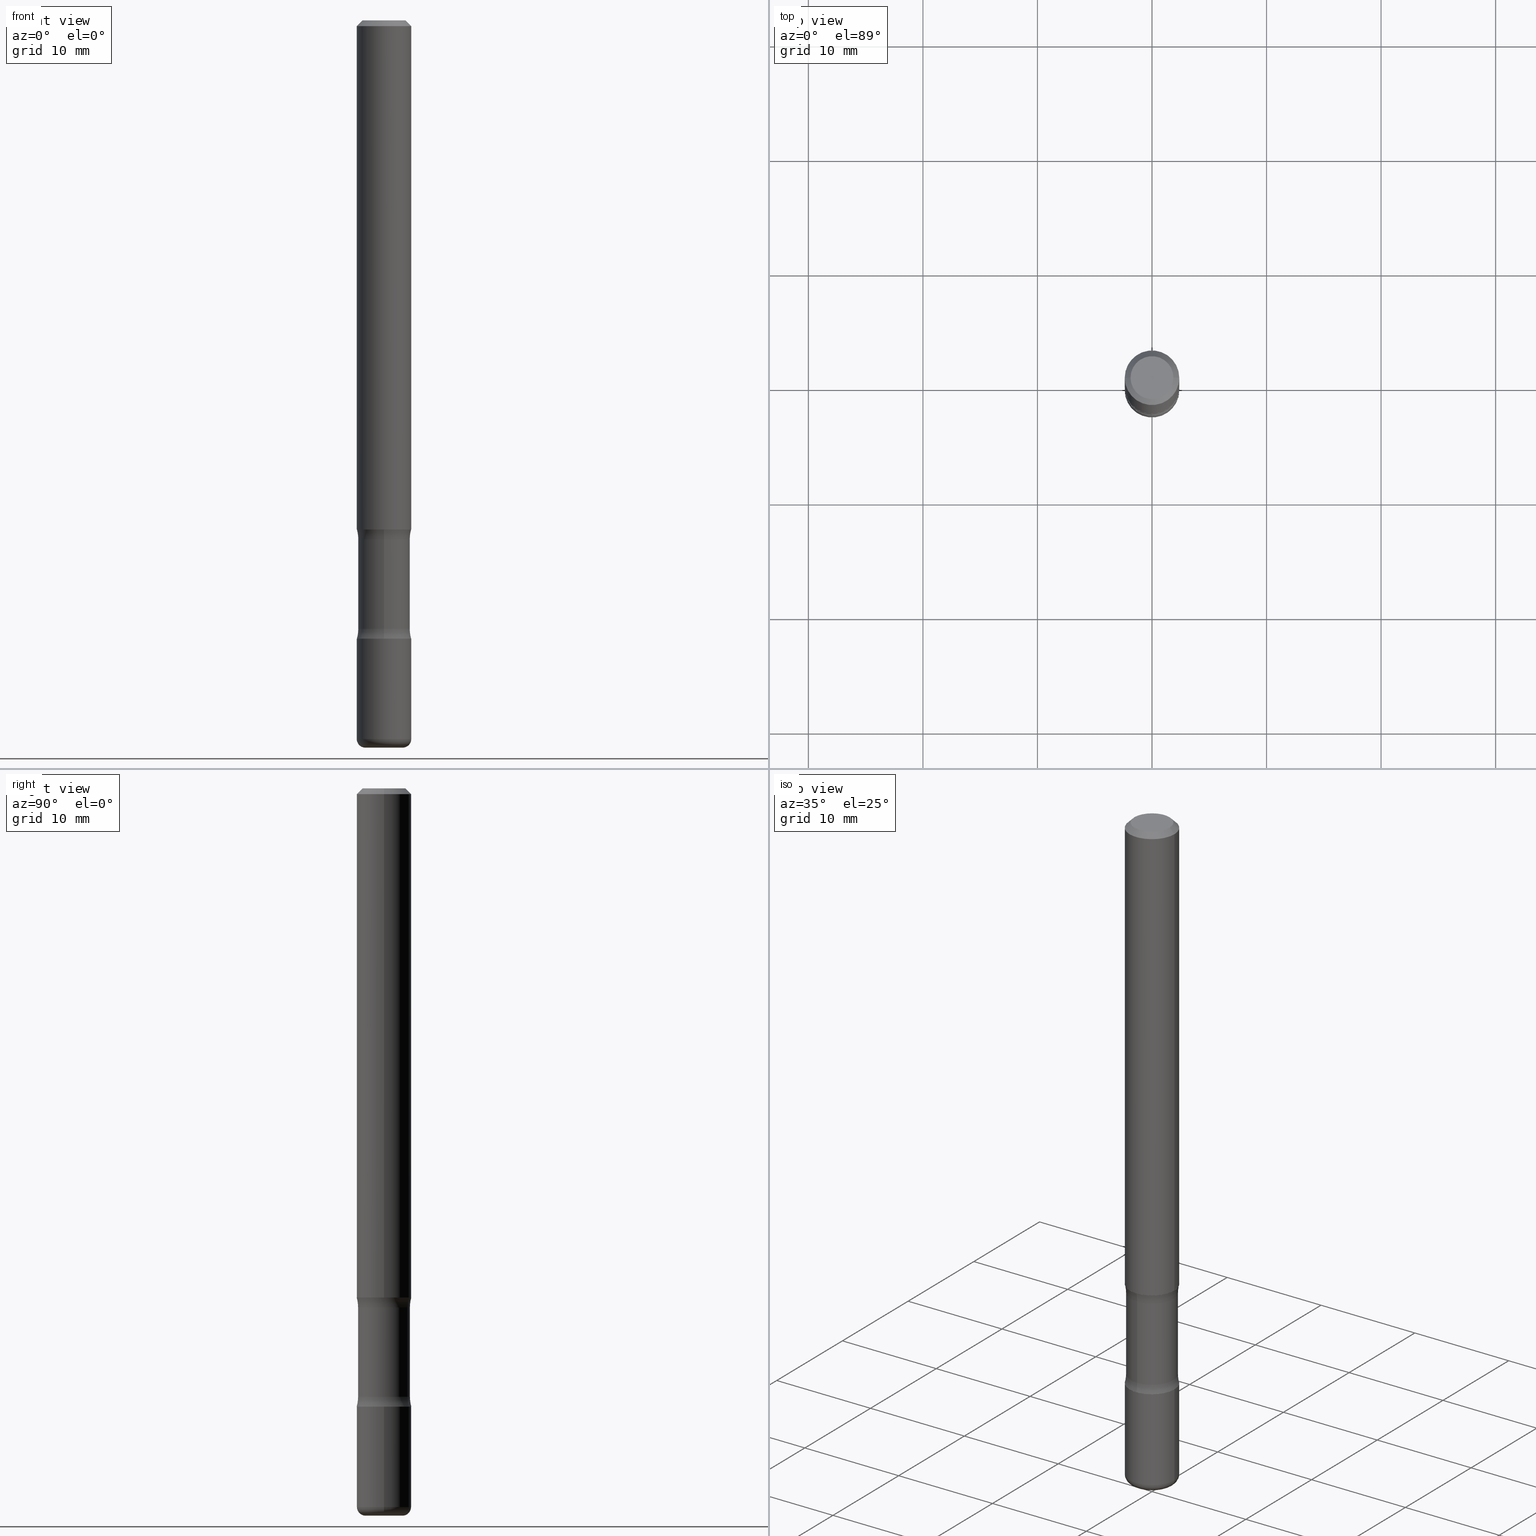
[diagram: canonical four-view strip — front | top / right | iso, engineering-drawing reading convention]
A machine part, canonical four-view strip (front | top / right | iso — engineering-drawing reading convention). The complete STEP part file that produces these views, byte-faithful:
ISO-10303-21;
HEADER;
FILE_DESCRIPTION (( 'STEP AP203' ),
    '1' );
FILE_NAME ('37778.STEP',
    '2024-03-02T00:14:35',
    ( '' ),
    ( '' ),
    'SwSTEP 2.0',
    'SolidWorks 2023',
    '' );
FILE_SCHEMA (( 'CONFIG_CONTROL_DESIGN' ));
ENDSEC;

DATA;
#1 = EDGE_CURVE ( 'NONE', #408, #203, #354, .T. ) ;
#2 = DIRECTION ( 'NONE',  ( 1.000000000000000000, -6.982962677686268288E-15, 0.000000000000000000 ) ) ;
#3 = AXIS2_PLACEMENT_3D ( 'NONE', #451, #271, #225 ) ;
#4 = AXIS2_PLACEMENT_3D ( 'NONE', #11, #98, #521 ) ;
#5 = DIRECTION ( 'NONE',  ( 6.982962677686265133E-15, 1.000000000000000000, -3.067338098149350666E-15 ) ) ;
#6 = EDGE_LOOP ( 'NONE', ( #57, #177, #470, #489 ) ) ;
#7 = DIRECTION ( 'NONE',  ( -2.445468806185136597E-29, 3.491481338843145583E-15, 1.000000000000000000 ) ) ;
#8 = PLANE ( 'NONE',  #418 ) ;
#9 = DIRECTION ( 'NONE',  ( 6.982962677686265922E-15, 1.000000000000000000, -2.913971193241879977E-15 ) ) ;
#10 = DIRECTION ( 'NONE',  ( 2.553476385947133355E-29, -3.336808337214295667E-15, -1.000000000000000000 ) ) ;
#11 = CARTESIAN_POINT ( 'NONE',  ( 0.000000000000000000, 0.000000000000000000, 0.000000000000000000 ) ) ;
#12 = CARTESIAN_POINT ( 'NONE',  ( 1.494790448192267349E-15, 0.2140624999999926614, -2.091089789977796265 ) ) ;
#13 = DIRECTION ( 'NONE',  ( 2.553476385947133355E-29, -3.336808337214295667E-15, -1.000000000000000000 ) ) ;
#14 = PERSON_AND_ORGANIZATION_ROLE ( 'creator' ) ;
#15 = PERSON_AND_ORGANIZATION_ROLE ( 'design_owner' ) ;
#16 = AXIS2_PLACEMENT_3D ( 'NONE', #442, #46, #214 ) ;
#17 = DIRECTION ( 'NONE',  ( 2.553476385947133355E-29, -3.336808337214295667E-15, -1.000000000000000000 ) ) ;
#18 = DIRECTION ( 'NONE',  ( -2.445468806185136877E-29, 3.491481338843145188E-15, 1.000000000000000000 ) ) ;
#19 = COORDINATED_UNIVERSAL_TIME_OFFSET ( 5, 0, .BEHIND. ) ;
#20 = APPROVAL_ROLE ( '' ) ;
#21 = EDGE_CURVE ( 'NONE', #430, #184, #85, .T. ) ;
#22 = DIRECTION ( 'NONE',  ( 1.000000000000000000, -6.982962677686265922E-15, 0.000000000000000000 ) ) ;
#23 = COORDINATED_UNIVERSAL_TIME_OFFSET ( 5, 0, .BEHIND. ) ;
#24 = CARTESIAN_POINT ( 'NONE',  ( 4.239067568413239630E-29, -6.168094718586322946E-15, -1.750000000000000000 ) ) ;
#25 = DIRECTION ( 'NONE',  ( 1.000000000000000000, -6.982962677686266711E-15, 4.876176775795935793E-29 ) ) ;
#26 = CIRCLE ( 'NONE', #126, 0.08906249999999993339 ) ;
#27 =( GEOMETRIC_REPRESENTATION_CONTEXT ( 3 ) GLOBAL_UNCERTAINTY_ASSIGNED_CONTEXT ( ( #540 ) ) GLOBAL_UNIT_ASSIGNED_CONTEXT ( ( #32, #506, #433 ) ) REPRESENTATION_CONTEXT ( 'NONE', 'WORKASPACE' ) );
#28 = DIRECTION ( 'NONE',  ( -2.445468806185136597E-29, 3.491481338843145583E-15, 1.000000000000000000 ) ) ;
#29 = PERSON_AND_ORGANIZATION ( #114, #229 ) ;
#30 = CYLINDRICAL_SURFACE ( 'NONE', #339, 0.09374999999999991673 ) ;
#31 = ORIENTED_EDGE ( 'NONE', *, *, #438, .F. ) ;
#32 =( CONVERSION_BASED_UNIT ( 'INCH', #295 ) LENGTH_UNIT ( ) NAMED_UNIT ( #429 ) );
#33 = VERTEX_POINT ( 'NONE', #357 ) ;
#34 = CARTESIAN_POINT ( 'NONE',  ( 6.219201134814940684E-16, 0.08906249999999125977, -2.500000000000000444 ) ) ;
#35 = ADVANCED_FACE ( 'NONE', ( #523 ), #476, .T. ) ;
#36 = CLOSED_SHELL ( 'NONE', ( #488, #386, #326, #246, #35, #435 ) ) ;
#37 = ORIENTED_EDGE ( 'NONE', *, *, #168, .T. ) ;
#38 = DATE_AND_TIME ( #82, #88 ) ;
#39 = CIRCLE ( 'NONE', #3, 0.09375000000000004163 ) ;
#40 = CIRCLE ( 'NONE', #547, 0.08906249999999994726 ) ;
#41 = TOROIDAL_SURFACE ( 'NONE', #251, 0.06375000000000007050, 0.02999999999999971440 ) ;
#42 = FACE_OUTER_BOUND ( 'NONE', #307, .T. ) ;
#43 = ORIENTED_EDGE ( 'NONE', *, *, #529, .F. ) ;
#44 = DIRECTION ( 'NONE',  ( -2.553476385947132794E-29, 3.336808337214295667E-15, 1.000000000000000000 ) ) ;
#45 = EDGE_CURVE ( 'NONE', #404, #294, #258, .T. ) ;
#46 = DIRECTION ( 'NONE',  ( -2.445468806185136597E-29, 3.491481338843145583E-15, 1.000000000000000000 ) ) ;
#47 = CYLINDRICAL_SURFACE ( 'NONE', #249, 0.08906249999999993339 ) ;
#48 = VERTEX_POINT ( 'NONE', #528 ) ;
#49 = VECTOR ( 'NONE', #466, 39.37007874015748143 ) ;
#50 = EDGE_CURVE ( 'NONE', #172, #341, #197, .T. ) ;
#51 = VECTOR ( 'NONE', #416, 39.37007874015748143 ) ;
#52 = DIRECTION ( 'NONE',  ( -1.000000000000000000, 6.982962677686265922E-15, -4.876176775795935793E-29 ) ) ;
#53 = ORIENTED_EDGE ( 'NONE', *, *, #478, .T. ) ;
#54 = ORIENTED_EDGE ( 'NONE', *, *, #163, .F. ) ;
#55 = ORIENTED_EDGE ( 'NONE', *, *, #178, .T. ) ;
#56 = PLANE ( 'NONE',  #338 ) ;
#57 = ORIENTED_EDGE ( 'NONE', *, *, #478, .F. ) ;
#58 = ORIENTED_EDGE ( 'NONE', *, *, #355, .T. ) ;
#59 = CARTESIAN_POINT ( 'NONE',  ( -0.09374999999999981959, 5.848231242562233185E-16, -0.02000000000000001776 ) ) ;
#60 = AXIS2_PLACEMENT_3D ( 'NONE', #543, #505, #335 ) ;
#61 = LINE ( 'NONE', #188, #51 ) ;
#62 = AXIS2_PLACEMENT_3D ( 'NONE', #403, #396, #551 ) ;
#63 = CARTESIAN_POINT ( 'NONE',  ( 0.06375000000000007050, -9.173867217810364919E-15, -2.500000000000000000 ) ) ;
#64 = CARTESIAN_POINT ( 'NONE',  ( 5.110032292609207884E-29, -7.306245973522905960E-15, -2.091089789977795821 ) ) ;
#65 = EDGE_CURVE ( 'NONE', #224, #408, #284, .T. ) ;
#66 = LINE ( 'NONE', #419, #157 ) ;
#67 = COORDINATED_UNIVERSAL_TIME_OFFSET ( 5, 0, .BEHIND. ) ;
#68 = DIRECTION ( 'NONE',  ( 6.860497997771531562E-15, 1.000000000000000000, 0.000000000000000000 ) ) ;
#69 = DIRECTION ( 'NONE',  ( 1.000000000000000000, -6.982962677686269866E-15, 0.000000000000000000 ) ) ;
#70 = CLOSED_SHELL ( 'NONE', ( #490, #342, #243, #252, #83, #375 ) ) ;
#71 = PERSON_AND_ORGANIZATION ( #114, #229 ) ;
#72 = CIRCLE ( 'NONE', #149, 0.09375000000000009714 ) ;
#73 = EDGE_CURVE ( 'NONE', #324, #224, #315, .T. ) ;
#74 = FACE_OUTER_BOUND ( 'NONE', #212, .T. ) ;
#75 = EDGE_LOOP ( 'NONE', ( #436, #266, #55, #152 ) ) ;
#76 = DIRECTION ( 'NONE',  ( -2.445468806185136597E-29, 3.491481338843145583E-15, 1.000000000000000000 ) ) ;
#77 = EDGE_CURVE ( 'NONE', #185, #341, #381, .T. ) ;
#78 = APPROVAL_STATUS ( 'not_yet_approved' ) ;
#79 = TOROIDAL_SURFACE ( 'NONE', #165, 0.2140624999999999889, 0.1250000000000000278 ) ;
#80 = DIRECTION ( 'NONE',  ( 1.000000000000000000, -6.982962677686266711E-15, 4.876176775795935793E-29 ) ) ;
#81 = ORIENTED_EDGE ( 'NONE', *, *, #196, .F. ) ;
#82 = CALENDAR_DATE ( 2024, 1, 3 ) ;
#83 = ADVANCED_FACE ( 'NONE', ( #200 ), #8, .F. ) ;
#84 = ADVANCED_BREP_SHAPE_REPRESENTATION ( '37778', ( #205, #560, #405, #475 ), #27 ) ;
#85 = CIRCLE ( 'NONE', #555, 0.06375000000000007050 ) ;
#86 = EDGE_LOOP ( 'NONE', ( #526, #507, #132, #193 ) ) ;
#87 = CIRCLE ( 'NONE', #514, 0.1250000000000000278 ) ;
#88 = LOCAL_TIME ( 19, 14, 35.00000000000000000, #123 ) ;
#89 = CARTESIAN_POINT ( 'NONE',  ( 6.040307951277289098E-29, -8.623958906942573151E-15, -2.470000000000000639 ) ) ;
#90 = VERTEX_POINT ( 'NONE', #235 ) ;
#91 = CARTESIAN_POINT ( 'NONE',  ( 0.09375000000000005551, -6.546527510330878985E-16, 4.571415727308692608E-30 ) ) ;
#92 = ORIENTED_EDGE ( 'NONE', *, *, #168, .F. ) ;
#93 = ORIENTED_EDGE ( 'NONE', *, *, #472, .F. ) ;
#94 = CIRCLE ( 'NONE', #173, 0.09375000000000009714 ) ;
#95 = ORIENTED_EDGE ( 'NONE', *, *, #73, .F. ) ;
#96 = EDGE_CURVE ( 'NONE', #324, #404, #87, .T. ) ;
#97 = CARTESIAN_POINT ( 'NONE',  ( 4.890937612370276662E-31, -6.982962677686296539E-17, -0.02000000000000001776 ) ) ;
#98 = DIRECTION ( 'NONE',  ( -2.445468806185136597E-29, 3.491481338843145583E-15, 1.000000000000000000 ) ) ;
#99 = EDGE_LOOP ( 'NONE', ( #525, #392, #222, #31 ) ) ;
#100 = ORIENTED_EDGE ( 'NONE', *, *, #539, .F. ) ;
#101 = CARTESIAN_POINT ( 'NONE',  ( 4.279570410823988484E-29, -6.110092342975504671E-15, -1.750000000000000000 ) ) ;
#102 = DIRECTION ( 'NONE',  ( -2.445468806185136597E-29, 3.491481338843145583E-15, 1.000000000000000000 ) ) ;
#103 = ORIENTED_EDGE ( 'NONE', *, *, #292, .T. ) ;
#104 = DIRECTION ( 'NONE',  ( 6.982962677686265133E-15, 1.000000000000000000, -6.134676196298701332E-15 ) ) ;
#105 = VECTOR ( 'NONE', #279, 39.37007874015748143 ) ;
#106 = EDGE_CURVE ( 'NONE', #227, #408, #356, .T. ) ;
#107 = DIRECTION ( 'NONE',  ( -1.000000000000000000, 6.982962677686265922E-15, -4.883557194083112901E-29 ) ) ;
#108 = DIRECTION ( 'NONE',  ( 2.445468806185136597E-29, -3.491481338843145583E-15, -1.000000000000000000 ) ) ;
#109 = DIRECTION ( 'NONE',  ( -1.000000000000000000, 6.982962677686265922E-15, -4.883557194083112901E-29 ) ) ;
#110 = APPROVAL ( #78, 'UNSPECIFIED' ) ;
#111 = PLANE ( 'NONE',  #474 ) ;
#112 = CARTESIAN_POINT ( 'NONE',  ( 4.279570410823988484E-29, -6.110092342975504671E-15, -1.750000000000000000 ) ) ;
#113 = EDGE_CURVE ( 'NONE', #351, #227, #115, .T. ) ;
#114 = PERSON ( 'UNSPECIFIED', 'UNSPECIFIED', 'UNSPECIFIED', ('UNSPECIFIED'), ('UNSPECIFIED'), ('UNSPECIFIED') ) ;
#115 = CIRCLE ( 'NONE', #209, 0.09375000000000002776 ) ;
#116 = CIRCLE ( 'NONE', #542, 0.09375000000000002776 ) ;
#117 = DIRECTION ( 'NONE',  ( 1.000000000000000000, -6.982962677686266711E-15, 4.876176775795935793E-29 ) ) ;
#118 = PERSON_AND_ORGANIZATION_ROLE ( 'classification_officer' ) ;
#119 = ORIENTED_EDGE ( 'NONE', *, *, #178, .F. ) ;
#120 = DIRECTION ( 'NONE',  ( 1.000000000000000000, -6.860497997771530774E-15, 4.842693077587735886E-29 ) ) ;
#121 = TOROIDAL_SURFACE ( 'NONE', #483, 0.06375000000000007050, 0.02999999999999971440 ) ;
#122 = APPROVAL_PERSON_ORGANIZATION ( #377, #206, #431 ) ;
#123 = COORDINATED_UNIVERSAL_TIME_OFFSET ( 5, 0, .BEHIND. ) ;
#124 = ORIENTED_EDGE ( 'NONE', *, *, #163, .T. ) ;
#125 = EDGE_CURVE ( 'NONE', #351, #203, #308, .T. ) ;
#126 = AXIS2_PLACEMENT_3D ( 'NONE', #64, #362, #487 ) ;
#127 = CIRCLE ( 'NONE', #4, 0.07374999999999984346 ) ;
#128 = DATE_AND_TIME ( #254, #275 ) ;
#129 = CARTESIAN_POINT ( 'NONE',  ( 0.09375000000000002776, -8.074050596074771916E-15, -2.125000000000000000 ) ) ;
#130 = CC_DESIGN_PERSON_AND_ORGANIZATION_ASSIGNMENT ( #471, #14, ( #415 ) ) ;
#131 = ADVANCED_FACE ( 'NONE', ( #74 ), #79, .F. ) ;
#132 = ORIENTED_EDGE ( 'NONE', *, *, #136, .F. ) ;
#133 = CARTESIAN_POINT ( 'NONE',  ( 5.110032292609207884E-29, -7.306245973522905960E-15, -2.091089789977795821 ) ) ;
#134 = ORIENTED_EDGE ( 'NONE', *, *, #438, .T. ) ;
#135 = DESIGN_CONTEXT ( 'detailed design', #410, 'design' ) ;
#136 = EDGE_CURVE ( 'NONE', #388, #341, #273, .T. ) ;
#137 = ORIENTED_EDGE ( 'NONE', *, *, #268, .F. ) ;
#138 = AXIS2_PLACEMENT_3D ( 'NONE', #455, #10, #104 ) ;
#139 = EDGE_LOOP ( 'NONE', ( #180, #450 ) ) ;
#140 = CC_DESIGN_DATE_AND_TIME_ASSIGNMENT ( #195, #198, ( #415 ) ) ;
#141 = LINE ( 'NONE', #190, #191 ) ;
#142 = CARTESIAN_POINT ( 'NONE',  ( 1.494790448192259658E-15, 0.2140624999999937161, -1.783910210022205289 ) ) ;
#143 = ORIENTED_EDGE ( 'NONE', *, *, #1, .T. ) ;
#144 = DIRECTION ( 'NONE',  ( 2.438088387897960049E-29, -3.491481338843145188E-15, -1.000000000000000000 ) ) ;
#145 = EDGE_CURVE ( 'NONE', #224, #324, #40, .T. ) ;
#146 = DIRECTION ( 'NONE',  ( -1.000000000000000000, 7.105427357600993970E-15, 0.000000000000000000 ) ) ;
#147 = CARTESIAN_POINT ( 'NONE',  ( 5.196621213143415268E-29, -7.419397845041685201E-15, -2.125000000000000000 ) ) ;
#148 = DIRECTION ( 'NONE',  ( 2.553476385947133355E-29, -3.336808337214295667E-15, -1.000000000000000000 ) ) ;
#149 = AXIS2_PLACEMENT_3D ( 'NONE', #417, #372, #22 ) ;
#150 = TOROIDAL_SURFACE ( 'NONE', #469, 0.2140624999999999889, 0.1250000000000000278 ) ;
#151 = DIRECTION ( 'NONE',  ( 6.982962677686265922E-15, 1.000000000000000000, -2.913971193241877611E-15 ) ) ;
#152 = ORIENTED_EDGE ( 'NONE', *, *, #443, .F. ) ;
#153 = DIRECTION ( 'NONE',  ( 6.982962677686265922E-15, 1.000000000000000000, -3.336808337214296061E-15 ) ) ;
#154 = DATE_TIME_ROLE ( 'classification_date' ) ;
#155 = CARTESIAN_POINT ( 'NONE',  ( 0.06375000000000007050, -9.069122777645073127E-15, -2.470000000000000639 ) ) ;
#156 = CARTESIAN_POINT ( 'NONE',  ( 6.113672015462842613E-29, -8.728703347107864943E-15, -2.500000000000000000 ) ) ;
#157 = VECTOR ( 'NONE', #316, 39.37007874015748143 ) ;
#158 = AXIS2_PLACEMENT_3D ( 'NONE', #510, #260, #290 ) ;
#159 = FACE_OUTER_BOUND ( 'NONE', #86, .T. ) ;
#160 = ORIENTED_EDGE ( 'NONE', *, *, #96, .F. ) ;
#161 = APPROVAL_STATUS ( 'not_yet_approved' ) ;
#162 = LINE ( 'NONE', #34, #439 ) ;
#163 = EDGE_CURVE ( 'NONE', #289, #33, #72, .T. ) ;
#164 = VERTEX_POINT ( 'NONE', #535 ) ;
#165 = AXIS2_PLACEMENT_3D ( 'NONE', #457, #321, #230 ) ;
#166 = ORIENTED_EDGE ( 'NONE', *, *, #21, .F. ) ;
#167 = CIRCLE ( 'NONE', #62, 0.09375000000000009714 ) ;
#168 = EDGE_CURVE ( 'NONE', #184, #430, #407, .T. ) ;
#169 = EDGE_LOOP ( 'NONE', ( #397, #423, #349, #43 ) ) ;
#170 = ORIENTED_EDGE ( 'NONE', *, *, #145, .F. ) ;
#171 = FACE_OUTER_BOUND ( 'NONE', #139, .T. ) ;
#172 = VERTEX_POINT ( 'NONE', #244 ) ;
#173 = AXIS2_PLACEMENT_3D ( 'NONE', #373, #13, #497 ) ;
#174 = CC_DESIGN_APPROVAL ( #110, ( #220 ) ) ;
#175 = PRODUCT ( '37778', '37778', '', ( #383 ) ) ;
#176 = ORIENTED_EDGE ( 'NONE', *, *, #219, .F. ) ;
#177 = ORIENTED_EDGE ( 'NONE', *, *, #181, .F. ) ;
#178 = EDGE_CURVE ( 'NONE', #184, #289, #238, .T. ) ;
#179 = EDGE_LOOP ( 'NONE', ( #93, #53, #401, #448 ) ) ;
#180 = ORIENTED_EDGE ( 'NONE', *, *, #45, .F. ) ;
#181 = EDGE_CURVE ( 'NONE', #185, #48, #218, .T. ) ;
#182 = AXIS2_PLACEMENT_3D ( 'NONE', #459, #461, #68 ) ;
#183 = CARTESIAN_POINT ( 'NONE',  ( 6.040307951277289098E-29, -8.623958906942573151E-15, -2.470000000000000639 ) ) ;
#184 = VERTEX_POINT ( 'NONE', #63 ) ;
#185 = VERTEX_POINT ( 'NONE', #387 ) ;
#186 = DIRECTION ( 'NONE',  ( 6.982962677686265133E-15, 1.000000000000000000, -3.067338098149349877E-15 ) ) ;
#187 = FACE_OUTER_BOUND ( 'NONE', #6, .T. ) ;
#188 = CARTESIAN_POINT ( 'NONE',  ( 0.09374999999999981959, -7.130013140679428044E-16, -0.02000000000000001776 ) ) ;
#189 = CARTESIAN_POINT ( 'NONE',  ( 4.325656488947447574E-29, -6.281246590105103764E-15, -1.783910210022204623 ) ) ;
#190 = CARTESIAN_POINT ( 'NONE',  ( 0.09374999999999991673, -6.546527510330869125E-16, 4.571415727308685602E-30 ) ) ;
#191 = VECTOR ( 'NONE', #18, 39.37007874015748143 ) ;
#192 = DIRECTION ( 'NONE',  ( -2.438088387897960049E-29, 3.491481338843145188E-15, 1.000000000000000000 ) ) ;
#193 = ORIENTED_EDGE ( 'NONE', *, *, #283, .F. ) ;
#194 = DIRECTION ( 'NONE',  ( -1.000000000000000000, 6.982962677686265922E-15, -4.876176775795935793E-29 ) ) ;
#195 = DATE_AND_TIME ( #323, #371 ) ;
#196 = EDGE_CURVE ( 'NONE', #227, #351, #393, .T. ) ;
#197 = LINE ( 'NONE', #498, #105 ) ;
#198 = DATE_TIME_ROLE ( 'creation_date' ) ;
#199 = DATE_AND_TIME ( #421, #533 ) ;
#200 = FACE_OUTER_BOUND ( 'NONE', #263, .T. ) ;
#201 = VECTOR ( 'NONE', #233, 39.37007874015748143 ) ;
#202 = AXIS2_PLACEMENT_3D ( 'NONE', #253, #468, #390 ) ;
#203 = VERTEX_POINT ( 'NONE', #364 ) ;
#204 = EDGE_CURVE ( 'NONE', #203, #408, #26, .T. ) ;
#205 = MANIFOLD_SOLID_BREP ( 'Body-Move/Copy2[1]', #36 ) ;
#206 = APPROVAL ( #502, 'UNSPECIFIED' ) ;
#207 = ORIENTED_EDGE ( 'NONE', *, *, #106, .T. ) ;
#208 = ADVANCED_FACE ( 'NONE', ( #460 ), #458, .T. ) ;
#209 = AXIS2_PLACEMENT_3D ( 'NONE', #147, #363, #538 ) ;
#210 = CARTESIAN_POINT ( 'NONE',  ( 5.196621213143415268E-29, -7.419397845041685201E-15, -2.125000000000000000 ) ) ;
#211 = CARTESIAN_POINT ( 'NONE',  ( -6.270923951087521301E-16, -0.08906250000000723310, -2.091089789977795377 ) ) ;
#212 = EDGE_LOOP ( 'NONE', ( #482, #394, #269, #270 ) ) ;
#213 = DIRECTION ( 'NONE',  ( -6.982962677686265922E-15, -1.000000000000000000, 3.336808337214295667E-15 ) ) ;
#214 = DIRECTION ( 'NONE',  ( 1.000000000000000000, -6.982962677686266711E-15, 4.876176775795935793E-29 ) ) ;
#215 = CARTESIAN_POINT ( 'NONE',  ( 6.154174857873591467E-29, -8.670700971497045879E-15, -2.500000000000000000 ) ) ;
#216 = DIRECTION ( 'NONE',  ( -2.445468806185136597E-29, 3.491481338843145583E-15, 1.000000000000000000 ) ) ;
#217 = ORIENTED_EDGE ( 'NONE', *, *, #529, .T. ) ;
#218 = CIRCLE ( 'NONE', #467, 0.07374999999999984346 ) ;
#219 = EDGE_CURVE ( 'NONE', #341, #388, #462, .T. ) ;
#220 = SECURITY_CLASSIFICATION ( '', '', #287 ) ;
#221 = ORIENTED_EDGE ( 'NONE', *, *, #304, .F. ) ;
#222 = ORIENTED_EDGE ( 'NONE', *, *, #481, .T. ) ;
#223 = CC_DESIGN_PERSON_AND_ORGANIZATION_ASSIGNMENT ( #331, #242, ( #317 ) ) ;
#224 = VERTEX_POINT ( 'NONE', #495 ) ;
#225 = DIRECTION ( 'NONE',  ( 1.000000000000000000, -6.982962677686269866E-15, 0.000000000000000000 ) ) ;
#226 = ORIENTED_EDGE ( 'NONE', *, *, #355, .F. ) ;
#227 = VERTEX_POINT ( 'NONE', #411 ) ;
#228 = CARTESIAN_POINT ( 'NONE',  ( 6.219201134814759246E-16, 0.08906249999999366063, -1.783910210022204845 ) ) ;
#229 = ORGANIZATION ( 'UNSPECIFIED', 'UNSPECIFIED', '' ) ;
#230 = DIRECTION ( 'NONE',  ( 6.982962677686265922E-15, 1.000000000000000000, -3.336808337214296061E-15 ) ) ;
#231 = CC_DESIGN_DATE_AND_TIME_ASSIGNMENT ( #199, #154, ( #220 ) ) ;
#232 = DIRECTION ( 'NONE',  ( 1.000000000000000000, -6.982962677686267499E-15, 0.000000000000000000 ) ) ;
#233 = DIRECTION ( 'NONE',  ( 2.553476385947133355E-29, -3.336808337214295667E-15, -1.000000000000000000 ) ) ;
#234 = CARTESIAN_POINT ( 'NONE',  ( 0.09374999999999994449, -9.278611657975658288E-15, -2.470000000000000639 ) ) ;
#235 = CARTESIAN_POINT ( 'NONE',  ( -0.09375000000000002776, -7.355544561217034463E-15, -2.125000000000000000 ) ) ;
#236 = ORIENTED_EDGE ( 'NONE', *, *, #276, .T. ) ;
#237 = DIRECTION ( 'NONE',  ( 1.000000000000000000, -6.982962677686268288E-15, 4.883557194083112901E-29 ) ) ;
#238 = CIRCLE ( 'NONE', #522, 0.02999999999999971440 ) ;
#239 = DIRECTION ( 'NONE',  ( 6.982962677686265922E-15, 1.000000000000000000, -3.336808337214295667E-15 ) ) ;
#240 = AXIS2_PLACEMENT_3D ( 'NONE', #509, #120, #432 ) ;
#241 = CARTESIAN_POINT ( 'NONE',  ( 4.890937612370276662E-31, -6.982962677686296539E-17, -0.02000000000000001776 ) ) ;
#242 = PERSON_AND_ORGANIZATION_ROLE ( 'design_supplier' ) ;
#243 = ADVANCED_FACE ( 'NONE', ( #187 ), #437, .T. ) ;
#244 = CARTESIAN_POINT ( 'NONE',  ( -0.09375000000000004163, -2.423827170101085722E-15, -1.750000000000000000 ) ) ;
#245 = COORDINATED_UNIVERSAL_TIME_OFFSET ( 5, 0, .BEHIND. ) ;
#246 = ADVANCED_FACE ( 'NONE', ( #524 ), #121, .T. ) ;
#247 = DIRECTION ( 'NONE',  ( 1.000000000000000000, 0.000000000000000000, 0.000000000000000000 ) ) ;
#248 = DIRECTION ( 'NONE',  ( 2.553476385947133355E-29, -3.336808337214295667E-15, -1.000000000000000000 ) ) ;
#249 = AXIS2_PLACEMENT_3D ( 'NONE', #215, #503, #378 ) ;
#250 = SHAPE_DEFINITION_REPRESENTATION ( #302, #84 ) ;
#251 = AXIS2_PLACEMENT_3D ( 'NONE', #89, #548, #518 ) ;
#252 = ADVANCED_FACE ( 'NONE', ( #359 ), #56, .F. ) ;
#253 = CARTESIAN_POINT ( 'NONE',  ( 0.000000000000000000, 0.000000000000000000, 0.000000000000000000 ) ) ;
#254 = CALENDAR_DATE ( 2024, 1, 3 ) ;
#255 = ADVANCED_FACE ( 'NONE', ( #365 ), #282, .F. ) ;
#256 = DIRECTION ( 'NONE',  ( 2.553476385947133355E-29, -3.336808337214295667E-15, -1.000000000000000000 ) ) ;
#257 = DIRECTION ( 'NONE',  ( 2.438088387897960049E-29, -3.491481338843145188E-15, -1.000000000000000000 ) ) ;
#258 = CIRCLE ( 'NONE', #426, 0.09375000000000009714 ) ;
#259 = ORIENTED_EDGE ( 'NONE', *, *, #145, .T. ) ;
#260 = DIRECTION ( 'NONE',  ( 2.553476385947133355E-29, -3.336808337214295667E-15, -1.000000000000000000 ) ) ;
#261 = CARTESIAN_POINT ( 'NONE',  ( 5.196621213143415268E-29, -7.419397845041685201E-15, -2.125000000000000000 ) ) ;
#262 = EDGE_LOOP ( 'NONE', ( #100, #95, #480, #558 ) ) ;
#263 = EDGE_LOOP ( 'NONE', ( #221, #137 ) ) ;
#264 = ORIENTED_EDGE ( 'NONE', *, *, #472, .T. ) ;
#265 = CC_DESIGN_PERSON_AND_ORGANIZATION_ASSIGNMENT ( #385, #465, ( #317 ) ) ;
#266 = ORIENTED_EDGE ( 'NONE', *, *, #21, .T. ) ;
#267 = CARTESIAN_POINT ( 'NONE',  ( -6.431716872910389785E-16, -0.09375000000000620337, -1.749999999999999556 ) ) ;
#268 = EDGE_CURVE ( 'NONE', #172, #164, #447, .T. ) ;
#269 = ORIENTED_EDGE ( 'NONE', *, *, #125, .T. ) ;
#270 = ORIENTED_EDGE ( 'NONE', *, *, #204, .T. ) ;
#271 = DIRECTION ( 'NONE',  ( -2.445468806185136597E-29, 3.491481338843145583E-15, 1.000000000000000000 ) ) ;
#272 = DIRECTION ( 'NONE',  ( -6.982962677686266711E-15, -1.000000000000000000, 3.491481338843145583E-15 ) ) ;
#273 = CIRCLE ( 'NONE', #511, 0.09374999999999981959 ) ;
#274 = CARTESIAN_POINT ( 'NONE',  ( 4.890937612370276662E-31, -6.982962677686296539E-17, -0.02000000000000001776 ) ) ;
#275 = LOCAL_TIME ( 19, 14, 35.00000000000000000, #67 ) ;
#276 = EDGE_CURVE ( 'NONE', #33, #90, #66, .T. ) ;
#277 = CARTESIAN_POINT ( 'NONE',  ( 0.000000000000000000, 0.000000000000000000, 0.000000000000000000 ) ) ;
#278 = DIRECTION ( 'NONE',  ( -2.445468806185136597E-29, 3.491481338843145583E-15, 1.000000000000000000 ) ) ;
#279 = DIRECTION ( 'NONE',  ( -2.445468806185136877E-29, 3.491481338843145188E-15, 1.000000000000000000 ) ) ;
#280 = DIRECTION ( 'NONE',  ( 2.553476385947132794E-29, -3.336808337214295667E-15, -1.000000000000000000 ) ) ;
#281 = AXIS2_PLACEMENT_3D ( 'NONE', #101, #278, #69 ) ;
#282 = TOROIDAL_SURFACE ( 'NONE', #556, 0.2140624999999999889, 0.1250000000000000278 ) ;
#283 = EDGE_CURVE ( 'NONE', #164, #388, #141, .T. ) ;
#284 = LINE ( 'NONE', #318, #201 ) ;
#285 = CALENDAR_DATE ( 2024, 1, 3 ) ;
#286 = PERSON_AND_ORGANIZATION ( #114, #229 ) ;
#287 = SECURITY_CLASSIFICATION_LEVEL ( 'unclassified' ) ;
#288 = CC_DESIGN_SECURITY_CLASSIFICATION ( #220, ( #317 ) ) ;
#289 = VERTEX_POINT ( 'NONE', #234 ) ;
#290 = DIRECTION ( 'NONE',  ( 6.982962677686265922E-15, 1.000000000000000000, -3.336808337214296061E-15 ) ) ;
#291 = ORIENTED_EDGE ( 'NONE', *, *, #196, .T. ) ;
#292 = EDGE_CURVE ( 'NONE', #294, #404, #94, .T. ) ;
#293 = CARTESIAN_POINT ( 'NONE',  ( 4.338651280918389502E-29, -6.262637308385086581E-15, -1.783910210022204401 ) ) ;
#294 = VERTEX_POINT ( 'NONE', #267 ) ;
#295 = LENGTH_MEASURE_WITH_UNIT ( LENGTH_MEASURE( 0.02539999999999999897 ), #337 );
#296 = CARTESIAN_POINT ( 'NONE',  ( 6.546527510331302998E-16, 0.09374999999999390765, -1.750000000000000222 ) ) ;
#297 = CIRCLE ( 'NONE', #382, 0.09375000000000002776 ) ;
#298 = AXIS2_PLACEMENT_3D ( 'NONE', #353, #280, #239 ) ;
#299 = ORIENTED_EDGE ( 'NONE', *, *, #65, .F. ) ;
#300 = CYLINDRICAL_SURFACE ( 'NONE', #202, 0.09375000000000005551 ) ;
#301 = ORIENTED_EDGE ( 'NONE', *, *, #113, .T. ) ;
#302 = PRODUCT_DEFINITION_SHAPE ( 'NONE', 'NONE',  #415 ) ;
#303 = EDGE_LOOP ( 'NONE', ( #124, #236, #226, #453 ) ) ;
#304 = EDGE_CURVE ( 'NONE', #164, #172, #39, .T. ) ;
#305 = FACE_OUTER_BOUND ( 'NONE', #552, .T. ) ;
#306 = CLOSED_SHELL ( 'NONE', ( #366, #545, #549, #255, #452, #391, #131, #208 ) ) ;
#307 = EDGE_LOOP ( 'NONE', ( #170, #544, #103, #160 ) ) ;
#308 = CIRCLE ( 'NONE', #369, 0.1250000000000000278 ) ;
#309 = CC_DESIGN_APPROVAL ( #206, ( #317 ) ) ;
#310 = EDGE_LOOP ( 'NONE', ( #92, #166 ) ) ;
#311 = DIRECTION ( 'NONE',  ( -6.982962677686265922E-15, -1.000000000000000000, 0.000000000000000000 ) ) ;
#312 = DIRECTION ( 'NONE',  ( -1.000000000000000000, 6.982962677686267499E-15, 0.000000000000000000 ) ) ;
#313 = CARTESIAN_POINT ( 'NONE',  ( -0.06375000000000007050, -8.170987912895507894E-15, -2.470000000000000639 ) ) ;
#314 = DIRECTION ( 'NONE',  ( -2.445468806185136597E-29, 3.491481338843145583E-15, 1.000000000000000000 ) ) ;
#315 = CIRCLE ( 'NONE', #346, 0.08906249999999994726 ) ;
#316 = DIRECTION ( 'NONE',  ( -2.445468806185136877E-29, 3.491481338843145188E-15, 1.000000000000000000 ) ) ;
#317 = PRODUCT_DEFINITION_FORMATION_WITH_SPECIFIED_SOURCE ( 'ANY', '', #175, .NOT_KNOWN. ) ;
#318 = CARTESIAN_POINT ( 'NONE',  ( -6.110131029264649859E-16, -0.08906250000000860700, -2.499999999999999556 ) ) ;
#319 = FACE_OUTER_BOUND ( 'NONE', #310, .T. ) ;
#320 = DATE_AND_TIME ( #285, #427 ) ;
#321 = DIRECTION ( 'NONE',  ( 2.553476385947133355E-29, -3.336808337214295667E-15, -1.000000000000000000 ) ) ;
#322 = FACE_OUTER_BOUND ( 'NONE', #179, .T. ) ;
#323 = CALENDAR_DATE ( 2024, 1, 3 ) ;
#324 = VERTEX_POINT ( 'NONE', #228 ) ;
#325 = DIRECTION ( 'NONE',  ( 1.000000000000000000, -6.982962677686269866E-15, 0.000000000000000000 ) ) ;
#326 = ADVANCED_FACE ( 'NONE', ( #319 ), #111, .T. ) ;
#327 = AXIS2_PLACEMENT_3D ( 'NONE', #133, #449, #5 ) ;
#328 = AXIS2_PLACEMENT_3D ( 'NONE', #97, #413, #232 ) ;
#329 = CYLINDRICAL_SURFACE ( 'NONE', #358, 0.09374999999999991673 ) ;
#330 = VECTOR ( 'NONE', #516, 39.37007874015748143 ) ;
#331 = PERSON_AND_ORGANIZATION ( #114, #229 ) ;
#332 = FACE_OUTER_BOUND ( 'NONE', #352, .T. ) ;
#333 = CARTESIAN_POINT ( 'NONE',  ( 0.000000000000000000, 0.000000000000000000, 0.000000000000000000 ) ) ;
#334 = APPROVAL_DATE_TIME ( #320, #110 ) ;
#335 = DIRECTION ( 'NONE',  ( -1.000000000000000000, 6.982962677686267499E-15, 0.000000000000000000 ) ) ;
#336 = APPROVAL_ROLE ( '' ) ;
#337 =( LENGTH_UNIT ( ) NAMED_UNIT ( * ) SI_UNIT ( $, .METRE. ) );
#338 = AXIS2_PLACEMENT_3D ( 'NONE', #527, #144, #370 ) ;
#339 = AXIS2_PLACEMENT_3D ( 'NONE', #333, #76, #80 ) ;
#340 = CARTESIAN_POINT ( 'NONE',  ( 8.726388948129611336E-30, -1.361158663068067946E-14, -2.125000000000000000 ) ) ;
#341 = VERTEX_POINT ( 'NONE', #59 ) ;
#342 = ADVANCED_FACE ( 'NONE', ( #322 ), #541, .T. ) ;
#343 = CARTESIAN_POINT ( 'NONE',  ( -0.06375000000000007050, -8.116778722614140245E-15, -2.500000000000000000 ) ) ;
#344 = CARTESIAN_POINT ( 'NONE',  ( 8.726388948129611336E-30, -1.361158663068067946E-14, -2.125000000000000000 ) ) ;
#345 = FACE_OUTER_BOUND ( 'NONE', #303, .T. ) ;
#346 = AXIS2_PLACEMENT_3D ( 'NONE', #376, #414, #186 ) ;
#347 = APPROVAL_PERSON_ORGANIZATION ( #71, #110, #20 ) ;
#348 = EDGE_LOOP ( 'NONE', ( #299, #259, #217, #550 ) ) ;
#349 = ORIENTED_EDGE ( 'NONE', *, *, #204, .F. ) ;
#350 = APPLICATION_CONTEXT ( 'configuration controlled 3d designs of mechanical parts and assemblies' ) ;
#351 = VERTEX_POINT ( 'NONE', #473 ) ;
#352 = EDGE_LOOP ( 'NONE', ( #37, #398, #54, #119 ) ) ;
#353 = CARTESIAN_POINT ( 'NONE',  ( 4.279570410823988484E-29, -6.110092342975504671E-15, -1.750000000000000000 ) ) ;
#354 = CIRCLE ( 'NONE', #327, 0.08906249999999993339 ) ;
#355 = EDGE_CURVE ( 'NONE', #484, #90, #297, .T. ) ;
#356 = CIRCLE ( 'NONE', #182, 0.1250000000000000278 ) ;
#357 = CARTESIAN_POINT ( 'NONE',  ( -0.09374999999999994449, -7.957825092167479227E-15, -2.470000000000000639 ) ) ;
#358 = AXIS2_PLACEMENT_3D ( 'NONE', #420, #28, #25 ) ;
#359 = FACE_OUTER_BOUND ( 'NONE', #440, .T. ) ;
#360 = PLANE ( 'NONE',  #298 ) ;
#361 = DIRECTION ( 'NONE',  ( -2.445468806185136597E-29, 3.491481338843145583E-15, 1.000000000000000000 ) ) ;
#362 = DIRECTION ( 'NONE',  ( 2.553476385947133355E-29, -3.336808337214295667E-15, -1.000000000000000000 ) ) ;
#363 = DIRECTION ( 'NONE',  ( 2.553476385947133355E-29, -3.336808337214295667E-15, -1.000000000000000000 ) ) ;
#364 = CARTESIAN_POINT ( 'NONE',  ( 6.219201134814836160E-16, 0.08906249999999261979, -2.091089789977795821 ) ) ;
#365 = FACE_OUTER_BOUND ( 'NONE', #262, .T. ) ;
#366 = ADVANCED_FACE ( 'NONE', ( #444 ), #47, .T. ) ;
#367 = LINE ( 'NONE', #91, #330 ) ;
#368 = CARTESIAN_POINT ( 'NONE',  ( -0.09374999999999981959, 5.848231242562233185E-16, -0.02000000000000001776 ) ) ;
#369 = AXIS2_PLACEMENT_3D ( 'NONE', #12, #107, #424 ) ;
#370 = DIRECTION ( 'NONE',  ( -1.000000000000000000, 6.982962677686265922E-15, -4.876176775795935793E-29 ) ) ;
#371 = LOCAL_TIME ( 19, 14, 35.00000000000000000, #19 ) ;
#372 = DIRECTION ( 'NONE',  ( -2.445468806185136597E-29, 3.491481338843145583E-15, 1.000000000000000000 ) ) ;
#373 = CARTESIAN_POINT ( 'NONE',  ( 4.239067568413239630E-29, -6.168094718586322946E-15, -1.750000000000000000 ) ) ;
#374 = APPLICATION_PROTOCOL_DEFINITION ( 'international standard', 'config_control_design', 1994, #350 ) ;
#375 = ADVANCED_FACE ( 'NONE', ( #499 ), #329, .T. ) ;
#376 = CARTESIAN_POINT ( 'NONE',  ( 4.325656488947447574E-29, -6.281246590105103764E-15, -1.783910210022204623 ) ) ;
#377 = PERSON_AND_ORGANIZATION ( #114, #229 ) ;
#378 = DIRECTION ( 'NONE',  ( 6.982962677686265133E-15, 1.000000000000000000, -6.134676196298701332E-15 ) ) ;
#379 = CARTESIAN_POINT ( 'NONE',  ( 0.000000000000000000, 0.000000000000000000, 0.000000000000000000 ) ) ;
#380 = PERSON_AND_ORGANIZATION ( #114, #229 ) ;
#381 = LINE ( 'NONE', #368, #49 ) ;
#382 = AXIS2_PLACEMENT_3D ( 'NONE', #210, #513, #477 ) ;
#383 = MECHANICAL_CONTEXT ( 'NONE', #350, 'mechanical' ) ;
#384 = AXIS2_PLACEMENT_3D ( 'NONE', #340, #257, #52 ) ;
#385 = PERSON_AND_ORGANIZATION ( #114, #229 ) ;
#386 = ADVANCED_FACE ( 'NONE', ( #332 ), #41, .T. ) ;
#387 = CARTESIAN_POINT ( 'NONE',  ( -0.07374999999999984346, 5.499083108677921624E-16, -3.723527850031186263E-30 ) ) ;
#388 = VERTEX_POINT ( 'NONE', #389 ) ;
#389 = CARTESIAN_POINT ( 'NONE',  ( 0.09374999999999981959, -7.130013140679428044E-16, -0.02000000000000001776 ) ) ;
#390 = DIRECTION ( 'NONE',  ( 1.000000000000000000, -6.982962677686266711E-15, 4.876176775795935793E-29 ) ) ;
#391 = ADVANCED_FACE ( 'NONE', ( #441 ), #402, .F. ) ;
#392 = ORIENTED_EDGE ( 'NONE', *, *, #443, .T. ) ;
#393 = CIRCLE ( 'NONE', #531, 0.09375000000000002776 ) ;
#394 = ORIENTED_EDGE ( 'NONE', *, *, #113, .F. ) ;
#395 = DIRECTION ( 'NONE',  ( 6.982962677686265922E-15, 1.000000000000000000, -3.336808337214296061E-15 ) ) ;
#396 = DIRECTION ( 'NONE',  ( -2.445468806185136597E-29, 3.491481338843145583E-15, 1.000000000000000000 ) ) ;
#397 = ORIENTED_EDGE ( 'NONE', *, *, #73, .T. ) ;
#398 = ORIENTED_EDGE ( 'NONE', *, *, #463, .T. ) ;
#399 = AXIS2_PLACEMENT_3D ( 'NONE', #156, #102, #532 ) ;
#400 = TOROIDAL_SURFACE ( 'NONE', #158, 0.2140624999999999889, 0.1250000000000000278 ) ;
#401 = ORIENTED_EDGE ( 'NONE', *, *, #136, .T. ) ;
#402 = PLANE ( 'NONE',  #409 ) ;
#403 = CARTESIAN_POINT ( 'NONE',  ( 6.040307951277289098E-29, -8.623958906942573151E-15, -2.470000000000000639 ) ) ;
#404 = VERTEX_POINT ( 'NONE', #296 ) ;
#405 = MANIFOLD_SOLID_BREP ( 'Body-Move/Copy2[4]', #306 ) ;
#406 = ORIENTED_EDGE ( 'NONE', *, *, #268, .T. ) ;
#407 = CIRCLE ( 'NONE', #399, 0.06375000000000007050 ) ;
#408 = VERTEX_POINT ( 'NONE', #211 ) ;
#409 = AXIS2_PLACEMENT_3D ( 'NONE', #344, #44, #213 ) ;
#410 = APPLICATION_CONTEXT ( 'configuration controlled 3d designs of mechanical parts and assemblies' ) ;
#411 = CARTESIAN_POINT ( 'NONE',  ( -6.431716872910290192E-16, -0.09375000000000745237, -2.125000000000000000 ) ) ;
#412 = DIRECTION ( 'NONE',  ( 2.553476385947133355E-29, -3.336808337214295667E-15, -1.000000000000000000 ) ) ;
#413 = DIRECTION ( 'NONE',  ( -2.445468806185136597E-29, 3.491481338843145583E-15, 1.000000000000000000 ) ) ;
#414 = DIRECTION ( 'NONE',  ( 2.553476385947133355E-29, -3.336808337214295667E-15, -1.000000000000000000 ) ) ;
#415 = PRODUCT_DEFINITION ( 'UNKNOWN', '', #317, #135 ) ;
#416 = DIRECTION ( 'NONE',  ( 0.7071067811865467956, -7.319954787623254468E-15, -0.7071067811865482389 ) ) ;
#417 = CARTESIAN_POINT ( 'NONE',  ( 6.040307951277289098E-29, -8.623958906942573151E-15, -2.470000000000000639 ) ) ;
#418 = AXIS2_PLACEMENT_3D ( 'NONE', #112, #192, #496 ) ;
#419 = CARTESIAN_POINT ( 'NONE',  ( -0.09375000000000005551, 6.661338147750943187E-16, -4.611501647113976798E-30 ) ) ;
#420 = CARTESIAN_POINT ( 'NONE',  ( 0.000000000000000000, 0.000000000000000000, 0.000000000000000000 ) ) ;
#421 = CALENDAR_DATE ( 2024, 1, 3 ) ;
#422 = DIRECTION ( 'NONE',  ( 1.000000000000000000, -6.982962677686267499E-15, 0.000000000000000000 ) ) ;
#423 = ORIENTED_EDGE ( 'NONE', *, *, #65, .T. ) ;
#424 = DIRECTION ( 'NONE',  ( -6.982962677686265922E-15, -1.000000000000000000, 0.000000000000000000 ) ) ;
#425 = EDGE_LOOP ( 'NONE', ( #554, #406, #517, #176 ) ) ;
#426 = AXIS2_PLACEMENT_3D ( 'NONE', #24, #17, #151 ) ;
#427 = LOCAL_TIME ( 19, 14, 35.00000000000000000, #245 ) ;
#428 = APPROVAL ( #161, 'UNSPECIFIED' ) ;
#429 = DIMENSIONAL_EXPONENTS ( 1.000000000000000000, 0.000000000000000000, 0.000000000000000000, 0.000000000000000000, 0.000000000000000000, 0.000000000000000000, 0.000000000000000000 ) ;
#430 = VERTEX_POINT ( 'NONE', #343 ) ;
#431 = APPROVAL_ROLE ( '' ) ;
#432 = DIRECTION ( 'NONE',  ( 6.860497997771531562E-15, 1.000000000000000000, 0.000000000000000000 ) ) ;
#433 =( NAMED_UNIT ( * ) SI_UNIT ( $, .STERADIAN. ) SOLID_ANGLE_UNIT ( ) );
#434 = EDGE_LOOP ( 'NONE', ( #301, #291 ) ) ;
#435 = ADVANCED_FACE ( 'NONE', ( #305 ), #479, .F. ) ;
#436 = ORIENTED_EDGE ( 'NONE', *, *, #463, .F. ) ;
#437 = CONICAL_SURFACE ( 'NONE', #501, 0.09374999999999981959, 0.7853981633974472798 ) ;
#438 = EDGE_CURVE ( 'NONE', #90, #484, #116, .T. ) ;
#439 = VECTOR ( 'NONE', #248, 39.37007874015748143 ) ;
#440 = EDGE_LOOP ( 'NONE', ( #446, #264 ) ) ;
#441 = FACE_OUTER_BOUND ( 'NONE', #434, .T. ) ;
#442 = CARTESIAN_POINT ( 'NONE',  ( 0.000000000000000000, 0.000000000000000000, 0.000000000000000000 ) ) ;
#443 = EDGE_CURVE ( 'NONE', #33, #289, #167, .T. ) ;
#444 = FACE_OUTER_BOUND ( 'NONE', #169, .T. ) ;
#445 = APPROVAL_DATE_TIME ( #128, #428 ) ;
#446 = ORIENTED_EDGE ( 'NONE', *, *, #181, .T. ) ;
#447 = CIRCLE ( 'NONE', #281, 0.09375000000000004163 ) ;
#448 = ORIENTED_EDGE ( 'NONE', *, *, #77, .F. ) ;
#449 = DIRECTION ( 'NONE',  ( 2.553476385947133355E-29, -3.336808337214295667E-15, -1.000000000000000000 ) ) ;
#450 = ORIENTED_EDGE ( 'NONE', *, *, #292, .F. ) ;
#451 = CARTESIAN_POINT ( 'NONE',  ( 4.279570410823988484E-29, -6.110092342975504671E-15, -1.750000000000000000 ) ) ;
#452 = ADVANCED_FACE ( 'NONE', ( #171 ), #360, .F. ) ;
#453 = ORIENTED_EDGE ( 'NONE', *, *, #481, .F. ) ;
#454 = CARTESIAN_POINT ( 'NONE',  ( 6.113672015462842613E-29, -8.728703347107864943E-15, -2.500000000000000000 ) ) ;
#455 = CARTESIAN_POINT ( 'NONE',  ( 6.154174857873591467E-29, -8.670700971497045879E-15, -2.500000000000000000 ) ) ;
#456 = DIRECTION ( 'NONE',  ( 7.105427357601001859E-15, 1.000000000000000000, -3.491481338843145583E-15 ) ) ;
#457 = CARTESIAN_POINT ( 'NONE',  ( 5.113694852322927974E-29, -7.301000979552905916E-15, -2.091089789977795821 ) ) ;
#458 = CYLINDRICAL_SURFACE ( 'NONE', #138, 0.08906249999999993339 ) ;
#459 = CARTESIAN_POINT ( 'NONE',  ( -1.468575352647916884E-15, -0.2140625000000072886, -2.091089789977794933 ) ) ;
#460 = FACE_OUTER_BOUND ( 'NONE', #348, .T. ) ;
#461 = DIRECTION ( 'NONE',  ( 1.000000000000000000, -6.860497997771530774E-15, 4.842693077587735886E-29 ) ) ;
#462 = CIRCLE ( 'NONE', #328, 0.09374999999999981959 ) ;
#463 = EDGE_CURVE ( 'NONE', #430, #33, #512, .T. ) ;
#464 = AXIS2_PLACEMENT_3D ( 'NONE', #313, #456, #146 ) ;
#465 = PERSON_AND_ORGANIZATION_ROLE ( 'creator' ) ;
#466 = DIRECTION ( 'NONE',  ( -0.7071067811865467956, 2.468850131082249172E-15, -0.7071067811865482389 ) ) ;
#467 = AXIS2_PLACEMENT_3D ( 'NONE', #277, #500, #117 ) ;
#468 = DIRECTION ( 'NONE',  ( -2.445468806185136597E-29, 3.491481338843145583E-15, 1.000000000000000000 ) ) ;
#469 = AXIS2_PLACEMENT_3D ( 'NONE', #293, #256, #395 ) ;
#470 = ORIENTED_EDGE ( 'NONE', *, *, #77, .T. ) ;
#471 = PERSON_AND_ORGANIZATION ( #114, #229 ) ;
#472 = EDGE_CURVE ( 'NONE', #48, #185, #127, .T. ) ;
#473 = CARTESIAN_POINT ( 'NONE',  ( 6.546527510331397661E-16, 0.09374999999999261702, -2.125000000000000444 ) ) ;
#474 = AXIS2_PLACEMENT_3D ( 'NONE', #454, #534, #194 ) ;
#475 = AXIS2_PLACEMENT_3D ( 'NONE', #379, #504, #247 ) ;
#476 = CYLINDRICAL_SURFACE ( 'NONE', #16, 0.09375000000000005551 ) ;
#477 = DIRECTION ( 'NONE',  ( 1.000000000000000000, -6.982962677686270655E-15, 0.000000000000000000 ) ) ;
#478 = EDGE_CURVE ( 'NONE', #48, #388, #61, .T. ) ;
#479 = PLANE ( 'NONE',  #384 ) ;
#480 = ORIENTED_EDGE ( 'NONE', *, *, #96, .T. ) ;
#481 = EDGE_CURVE ( 'NONE', #289, #484, #367, .T. ) ;
#482 = ORIENTED_EDGE ( 'NONE', *, *, #106, .F. ) ;
#483 = AXIS2_PLACEMENT_3D ( 'NONE', #183, #7, #237 ) ;
#484 = VERTEX_POINT ( 'NONE', #129 ) ;
#485 = CARTESIAN_POINT ( 'NONE',  ( 5.196621213143415268E-29, -7.419397845041685201E-15, -2.125000000000000000 ) ) ;
#486 = CC_DESIGN_PERSON_AND_ORGANIZATION_ASSIGNMENT ( #380, #118, ( #220 ) ) ;
#487 = DIRECTION ( 'NONE',  ( 6.982962677686265133E-15, 1.000000000000000000, -3.067338098149350666E-15 ) ) ;
#488 = ADVANCED_FACE ( 'NONE', ( #345 ), #300, .T. ) ;
#489 = ORIENTED_EDGE ( 'NONE', *, *, #219, .T. ) ;
#490 = ADVANCED_FACE ( 'NONE', ( #159 ), #30, .T. ) ;
#491 = DIRECTION ( 'NONE',  ( 2.553476385947133355E-29, -3.336808337214295667E-15, -1.000000000000000000 ) ) ;
#492 = PRODUCT_RELATED_PRODUCT_CATEGORY ( 'detail', '', ( #175 ) ) ;
#493 = DIRECTION ( 'NONE',  ( 6.982962677686265133E-15, 1.000000000000000000, -3.067338098149349877E-15 ) ) ;
#494 = APPROVAL_PERSON_ORGANIZATION ( #29, #428, #336 ) ;
#495 = CARTESIAN_POINT ( 'NONE',  ( -6.270923951087611034E-16, -0.08906250000000623390, -1.783910210022204401 ) ) ;
#496 = DIRECTION ( 'NONE',  ( 1.000000000000000000, -6.982962677686265922E-15, 4.876176775795935793E-29 ) ) ;
#497 = DIRECTION ( 'NONE',  ( 6.982962677686265922E-15, 1.000000000000000000, -2.913971193241877611E-15 ) ) ;
#498 = CARTESIAN_POINT ( 'NONE',  ( -0.09374999999999991673, 6.661338147750933326E-16, -4.611501647113969791E-30 ) ) ;
#499 = FACE_OUTER_BOUND ( 'NONE', #425, .T. ) ;
#500 = DIRECTION ( 'NONE',  ( -2.445468806185136597E-29, 3.491481338843145583E-15, 1.000000000000000000 ) ) ;
#501 = AXIS2_PLACEMENT_3D ( 'NONE', #274, #108, #312 ) ;
#502 = APPROVAL_STATUS ( 'not_yet_approved' ) ;
#503 = DIRECTION ( 'NONE',  ( 2.553476385947133355E-29, -3.336808337214295667E-15, -1.000000000000000000 ) ) ;
#504 = DIRECTION ( 'NONE',  ( 0.000000000000000000, 0.000000000000000000, 1.000000000000000000 ) ) ;
#505 = DIRECTION ( 'NONE',  ( 2.445468806185136597E-29, -3.491481338843145583E-15, -1.000000000000000000 ) ) ;
#506 =( NAMED_UNIT ( * ) PLANE_ANGLE_UNIT ( ) SI_UNIT ( $, .RADIAN. ) );
#507 = ORIENTED_EDGE ( 'NONE', *, *, #50, .T. ) ;
#508 = CC_DESIGN_PERSON_AND_ORGANIZATION_ASSIGNMENT ( #286, #15, ( #175 ) ) ;
#509 = CARTESIAN_POINT ( 'NONE',  ( -1.468575352647924772E-15, -0.2140625000000062339, -1.783910210022203513 ) ) ;
#510 = CARTESIAN_POINT ( 'NONE',  ( 5.113694852322927974E-29, -7.301000979552905916E-15, -2.091089789977795821 ) ) ;
#511 = AXIS2_PLACEMENT_3D ( 'NONE', #241, #314, #422 ) ;
#512 = CIRCLE ( 'NONE', #464, 0.02999999999999971440 ) ;
#513 = DIRECTION ( 'NONE',  ( -2.445468806185136597E-29, 3.491481338843145583E-15, 1.000000000000000000 ) ) ;
#514 = AXIS2_PLACEMENT_3D ( 'NONE', #142, #109, #311 ) ;
#515 = CC_DESIGN_APPROVAL ( #428, ( #415 ) ) ;
#516 = DIRECTION ( 'NONE',  ( -2.445468806185136877E-29, 3.491481338843145188E-15, 1.000000000000000000 ) ) ;
#517 = ORIENTED_EDGE ( 'NONE', *, *, #283, .T. ) ;
#518 = DIRECTION ( 'NONE',  ( 1.000000000000000000, -6.982962677686268288E-15, 4.883557194083112901E-29 ) ) ;
#519 = ORIENTED_EDGE ( 'NONE', *, *, #125, .F. ) ;
#520 = EDGE_LOOP ( 'NONE', ( #81, #207, #143, #519 ) ) ;
#521 = DIRECTION ( 'NONE',  ( 1.000000000000000000, -6.982962677686266711E-15, 4.876176775795935793E-29 ) ) ;
#522 = AXIS2_PLACEMENT_3D ( 'NONE', #155, #272, #325 ) ;
#523 = FACE_OUTER_BOUND ( 'NONE', #99, .T. ) ;
#524 = FACE_OUTER_BOUND ( 'NONE', #75, .T. ) ;
#525 = ORIENTED_EDGE ( 'NONE', *, *, #276, .F. ) ;
#526 = ORIENTED_EDGE ( 'NONE', *, *, #304, .T. ) ;
#527 = CARTESIAN_POINT ( 'NONE',  ( 5.149934974793610063E-16, 0.07374999999999984346, -2.574967487396814399E-16 ) ) ;
#528 = CARTESIAN_POINT ( 'NONE',  ( 0.07374999999999984346, -6.094815207017961198E-16, 3.931526600461598749E-30 ) ) ;
#529 = EDGE_CURVE ( 'NONE', #324, #203, #162, .T. ) ;
#530 = CARTESIAN_POINT ( 'NONE',  ( 4.338651280918389502E-29, -6.262637308385086581E-15, -1.783910210022204401 ) ) ;
#531 = AXIS2_PLACEMENT_3D ( 'NONE', #485, #412, #9 ) ;
#532 = DIRECTION ( 'NONE',  ( 1.000000000000000000, -6.982962677686268288E-15, 0.000000000000000000 ) ) ;
#533 = LOCAL_TIME ( 19, 14, 35.00000000000000000, #23 ) ;
#534 = DIRECTION ( 'NONE',  ( 2.438088387897960049E-29, -3.491481338843145188E-15, -1.000000000000000000 ) ) ;
#535 = CARTESIAN_POINT ( 'NONE',  ( 0.09375000000000004163, -6.764745094008592175E-15, -1.750000000000000000 ) ) ;
#536 = APPLICATION_PROTOCOL_DEFINITION ( 'international standard', 'config_control_design', 1994, #410 ) ;
#537 = APPROVAL_DATE_TIME ( #38, #206 ) ;
#538 = DIRECTION ( 'NONE',  ( 6.982962677686265922E-15, 1.000000000000000000, -2.913971193241879977E-15 ) ) ;
#539 = EDGE_CURVE ( 'NONE', #224, #294, #557, .T. ) ;
#540 = UNCERTAINTY_MEASURE_WITH_UNIT (LENGTH_MEASURE( 1.000000000000000082E-05 ), #32, 'distance_accuracy_value', 'NONE');
#541 = CONICAL_SURFACE ( 'NONE', #60, 0.09374999999999981959, 0.7853981633974472798 ) ;
#542 = AXIS2_PLACEMENT_3D ( 'NONE', #261, #216, #553 ) ;
#543 = CARTESIAN_POINT ( 'NONE',  ( 4.890937612370276662E-31, -6.982962677686296539E-17, -0.02000000000000001776 ) ) ;
#544 = ORIENTED_EDGE ( 'NONE', *, *, #539, .T. ) ;
#545 = ADVANCED_FACE ( 'NONE', ( #546 ), #400, .F. ) ;
#546 = FACE_OUTER_BOUND ( 'NONE', #520, .T. ) ;
#547 = AXIS2_PLACEMENT_3D ( 'NONE', #189, #491, #493 ) ;
#548 = DIRECTION ( 'NONE',  ( -2.445468806185136597E-29, 3.491481338843145583E-15, 1.000000000000000000 ) ) ;
#549 = ADVANCED_FACE ( 'NONE', ( #42 ), #150, .F. ) ;
#550 = ORIENTED_EDGE ( 'NONE', *, *, #1, .F. ) ;
#551 = DIRECTION ( 'NONE',  ( 1.000000000000000000, -6.982962677686265922E-15, 0.000000000000000000 ) ) ;
#552 = EDGE_LOOP ( 'NONE', ( #58, #134 ) ) ;
#553 = DIRECTION ( 'NONE',  ( 1.000000000000000000, -6.982962677686270655E-15, 0.000000000000000000 ) ) ;
#554 = ORIENTED_EDGE ( 'NONE', *, *, #50, .F. ) ;
#555 = AXIS2_PLACEMENT_3D ( 'NONE', #559, #361, #2 ) ;
#556 = AXIS2_PLACEMENT_3D ( 'NONE', #530, #148, #153 ) ;
#557 = CIRCLE ( 'NONE', #240, 0.1250000000000000278 ) ;
#558 = ORIENTED_EDGE ( 'NONE', *, *, #45, .T. ) ;
#559 = CARTESIAN_POINT ( 'NONE',  ( 6.113672015462842613E-29, -8.728703347107864943E-15, -2.500000000000000000 ) ) ;
#560 = MANIFOLD_SOLID_BREP ( 'Body-Move/Copy2[2]', #70 ) ;
ENDSEC;
END-ISO-10303-21;
